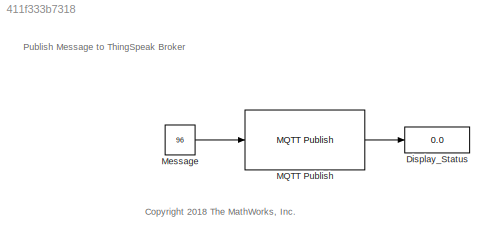
MODEL slx_411f333b7318
KIND model
CONFIG AbsTol = auto
CONFIG EnableMultiTasking = on
CONFIG FixedStep = auto
CONFIG MaxStep = auto
CONFIG MinStep = auto
CONFIG RelTol = 1e-3
CONFIG SampleTimeConstraint = Unconstrained
CONFIG Solver = FixedStepAuto
CONFIG SolverName = FixedStepAuto
CONFIG StartTime = 0.0
CONFIG StopTime = 10.0
BLOCK [Display] Display_Status
  Decimation = 1
  Ports = [1]
BLOCK [Reference] MQTT Publish  REF=embdlinuxlib/MQTT Publish
  Ports = [1, 1]
  SourceBlock = embdlinuxlib/MQTT Publish
  SourceProductBaseCode = RASPPI
  SourceProductName = Simulink Support Package for Raspberry Pi Hardware
  SourceType = codertarget.linux.blocks.MQTTPublish
BLOCK [Constant] Message
  SampleTime = 3
  Value = 96
ANNOTATION (root): Publish Message to ThingSpeak Broker
ANNOTATION (root): <copyright redacted>
LINE MQTT Publish:1 -> Display_Status:1
LINE Message:1 -> MQTT Publish:1
